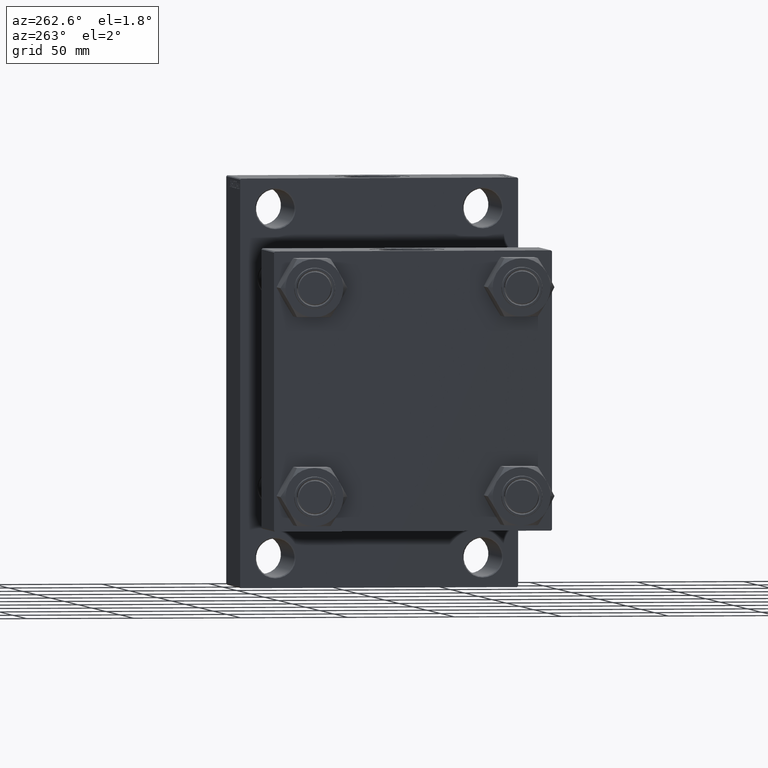
[diagram: clean part render]
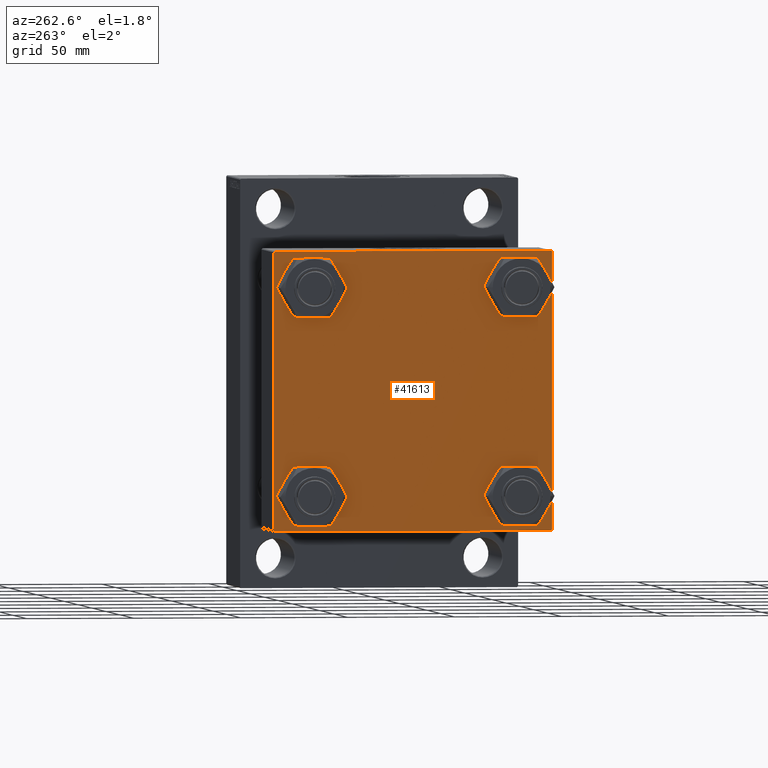
[diagram: same view with one face highlighted and labeled with its STEP entity id]
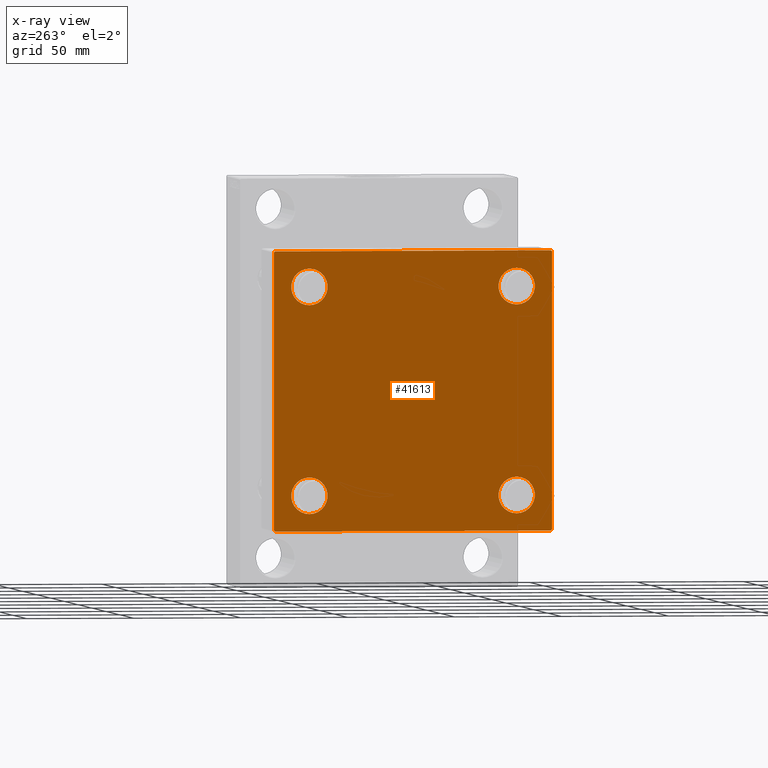
[diagram: x-ray of the same camera — body ghosted, the highlighted face saturated]
A machine part, auxiliary view. The second image highlights one B-rep face of the part: STEP entity #41613.
The next image is the same camera in x-ray: the body ghosted, the highlighted face saturated — about 0% of this face is hidden behind the body in this view.
In plain terms, the highlighted planar face has unit normal (-1, 0, 0).
Its self-contained STEP definition (entity closure, byte-faithful):
#633 = DIRECTION ( 'NONE',  ( -0.000000000000000000, 0.000000000000000000, 1.000000000000000000 ) ) ;
#651 = VERTEX_POINT ( 'NONE', #20208 ) ;
#824 = EDGE_CURVE ( 'NONE', #8812, #14473, #24542, .T. ) ;
#893 = AXIS2_PLACEMENT_3D ( 'NONE', #31475, #24711, #39664 ) ;
#1100 = AXIS2_PLACEMENT_3D ( 'NONE', #36131, #32259, #24809 ) ;
#1127 = DIRECTION ( 'NONE',  ( 1.000000000000000000, -0.000000000000000000, 0.000000000000000000 ) ) ;
#1128 = EDGE_CURVE ( 'NONE', #17832, #42554, #17634, .T. ) ;
#1235 = DIRECTION ( 'NONE',  ( 1.000000000000000000, -0.000000000000000000, 0.000000000000000000 ) ) ;
#1242 = LINE ( 'NONE', #34068, #8619 ) ;
#1533 = CIRCLE ( 'NONE', #37007, 8.500000000000007105 ) ;
#1589 = CIRCLE ( 'NONE', #34737, 8.500000000000007105 ) ;
#1799 = EDGE_LOOP ( 'NONE', ( #16014, #11543, #43783, #16120, #40403, #41701, #24566, #44452 ) ) ;
#1982 = CARTESIAN_POINT ( 'NONE',  ( 0.000000000000000000, -64.49999999999994316, -65.00000000000000000 ) ) ;
#2787 = CARTESIAN_POINT ( 'NONE',  ( 0.000000000000000000, 64.74999999999997158, -64.74999999999997158 ) ) ;
#2841 = VERTEX_POINT ( 'NONE', #8530 ) ;
#2976 = CARTESIAN_POINT ( 'NONE',  ( 0.000000000000000000, -48.44999999999999574, -56.95000000000003837 ) ) ;
#3152 = LINE ( 'NONE', #22222, #46647 ) ;
#3223 = VERTEX_POINT ( 'NONE', #9834 ) ;
#3517 = VERTEX_POINT ( 'NONE', #19929 ) ;
#4068 = CIRCLE ( 'NONE', #11002, 8.500000000000007105 ) ;
#4659 = EDGE_CURVE ( 'NONE', #42554, #17832, #1533, .T. ) ;
#5634 = AXIS2_PLACEMENT_3D ( 'NONE', #44308, #22102, #18949 ) ;
#6456 = EDGE_LOOP ( 'NONE', ( #26474, #38311 ) ) ;
#6845 = DIRECTION ( 'NONE',  ( 0.000000000000000000, 0.000000000000000000, -1.000000000000000000 ) ) ;
#6855 = CARTESIAN_POINT ( 'NONE',  ( 0.000000000000000000, 48.45000000000000995, -48.45000000000001705 ) ) ;
#6909 = EDGE_LOOP ( 'NONE', ( #15921, #40888 ) ) ;
#7725 = CARTESIAN_POINT ( 'NONE',  ( 0.000000000000000000, -64.75000000000176215, -64.74999999999816680 ) ) ;
#8087 = EDGE_CURVE ( 'NONE', #3223, #15314, #1589, .T. ) ;
#8216 = DIRECTION ( 'NONE',  ( 0.000000000000000000, 0.000000000000000000, 1.000000000000000000 ) ) ;
#8448 = LINE ( 'NONE', #16182, #34885 ) ;
#8530 = CARTESIAN_POINT ( 'NONE',  ( 0.000000000000000000, 65.00000000000000000, -64.49999999999995737 ) ) ;
#8559 = CARTESIAN_POINT ( 'NONE',  ( 0.000000000000000000, 64.49999999999997158, -64.99999999999998579 ) ) ;
#8619 = VECTOR ( 'NONE', #26616, 1000.000000000000000 ) ;
#8812 = VERTEX_POINT ( 'NONE', #29383 ) ;
#9073 = CARTESIAN_POINT ( 'NONE',  ( 0.000000000000000000, 0.000000000000000000, 0.000000000000000000 ) ) ;
#9229 = EDGE_LOOP ( 'NONE', ( #47346, #25514 ) ) ;
#9810 = DIRECTION ( 'NONE',  ( 0.000000000000000000, -1.000000000000000000, -1.067522139062650425E-16 ) ) ;
#9834 = CARTESIAN_POINT ( 'NONE',  ( 0.000000000000000000, -48.44999999999999574, 56.95000000000003837 ) ) ;
#10033 = VECTOR ( 'NONE', #13656, 1000.000000000000114 ) ;
#10218 = EDGE_CURVE ( 'NONE', #15314, #3223, #21730, .T. ) ;
#10465 = EDGE_CURVE ( 'NONE', #34556, #31145, #1242, .T. ) ;
#10739 = DIRECTION ( 'NONE',  ( 1.000000000000000000, -0.000000000000000000, 0.000000000000000000 ) ) ;
#10814 = EDGE_CURVE ( 'NONE', #18145, #31145, #33546, .T. ) ;
#11002 = AXIS2_PLACEMENT_3D ( 'NONE', #34305, #1235, #15977 ) ;
#11543 = ORIENTED_EDGE ( 'NONE', *, *, #36943, .T. ) ;
#12354 = EDGE_CURVE ( 'NONE', #34556, #14473, #8448, .T. ) ;
#13656 = DIRECTION ( 'NONE',  ( -0.000000000000000000, -0.7071067811865474617, -0.7071067811865474617 ) ) ;
#14146 = LINE ( 'NONE', #2787, #10033 ) ;
#14386 = EDGE_LOOP ( 'NONE', ( #45991, #40654 ) ) ;
#14473 = VERTEX_POINT ( 'NONE', #31545 ) ;
#14597 = CARTESIAN_POINT ( 'NONE',  ( 0.000000000000000000, 48.45000000000000995, -48.45000000000001705 ) ) ;
#15314 = VERTEX_POINT ( 'NONE', #18260 ) ;
#15387 = VERTEX_POINT ( 'NONE', #43845 ) ;
#15921 = ORIENTED_EDGE ( 'NONE', *, *, #46705, .T. ) ;
#15977 = DIRECTION ( 'NONE',  ( 0.000000000000000000, 0.000000000000000000, 1.000000000000000000 ) ) ;
#16014 = ORIENTED_EDGE ( 'NONE', *, *, #37339, .T. ) ;
#16120 = ORIENTED_EDGE ( 'NONE', *, *, #10814, .T. ) ;
#16182 = CARTESIAN_POINT ( 'NONE',  ( -0.000000000000000000, -64.74999999999819522, 64.75000000000179057 ) ) ;
#16389 = EDGE_CURVE ( 'NONE', #651, #27275, #46613, .T. ) ;
#17485 = EDGE_CURVE ( 'NONE', #8812, #15387, #3152, .T. ) ;
#17634 = CIRCLE ( 'NONE', #36140, 8.500000000000007105 ) ;
#17832 = VERTEX_POINT ( 'NONE', #37368 ) ;
#18145 = VERTEX_POINT ( 'NONE', #1982 ) ;
#18260 = CARTESIAN_POINT ( 'NONE',  ( 0.000000000000000000, -48.44999999999999574, 39.95000000000001705 ) ) ;
#18378 = CIRCLE ( 'NONE', #27652, 8.500000000000007105 ) ;
#18949 = DIRECTION ( 'NONE',  ( 0.000000000000000000, 0.000000000000000000, 1.000000000000000000 ) ) ;
#18988 = PLANE ( 'NONE',  #35593 ) ;
#19117 = CARTESIAN_POINT ( 'NONE',  ( 0.000000000000000000, -65.00000000000000000, 64.50000000000000000 ) ) ;
#19799 = DIRECTION ( 'NONE',  ( -0.000000000000000000, 0.7071067811865672237, 0.7071067811865279218 ) ) ;
#19929 = CARTESIAN_POINT ( 'NONE',  ( 0.000000000000000000, -48.44999999999999574, -39.95000000000001705 ) ) ;
#20208 = CARTESIAN_POINT ( 'NONE',  ( 0.000000000000000000, 48.45000000000000995, 56.95000000000002416 ) ) ;
#20269 = CIRCLE ( 'NONE', #5634, 8.500000000000007105 ) ;
#21678 = CARTESIAN_POINT ( 'NONE',  ( 0.000000000000000000, -48.44999999999999574, 48.45000000000003126 ) ) ;
#21730 = CIRCLE ( 'NONE', #893, 8.500000000000007105 ) ;
#22102 = DIRECTION ( 'NONE',  ( 1.000000000000000000, -0.000000000000000000, 0.000000000000000000 ) ) ;
#22222 = CARTESIAN_POINT ( 'NONE',  ( 0.000000000000000000, 64.74999999999998579, 64.74999999999998579 ) ) ;
#22241 = DIRECTION ( 'NONE',  ( 1.000000000000000000, -0.000000000000000000, 0.000000000000000000 ) ) ;
#24542 = LINE ( 'NONE', #35630, #43058 ) ;
#24566 = ORIENTED_EDGE ( 'NONE', *, *, #824, .F. ) ;
#24711 = DIRECTION ( 'NONE',  ( 1.000000000000000000, -0.000000000000000000, 0.000000000000000000 ) ) ;
#24794 = VECTOR ( 'NONE', #28943, 1000.000000000000000 ) ;
#24809 = DIRECTION ( 'NONE',  ( 0.000000000000000000, 0.000000000000000000, 1.000000000000000000 ) ) ;
#25514 = ORIENTED_EDGE ( 'NONE', *, *, #4659, .T. ) ;
#26321 = DIRECTION ( 'NONE',  ( 0.000000000000000000, -0.7071067811865279218, 0.7071067811865671127 ) ) ;
#26474 = ORIENTED_EDGE ( 'NONE', *, *, #16389, .T. ) ;
#26616 = DIRECTION ( 'NONE',  ( 0.000000000000000000, 0.000000000000000000, -1.000000000000000000 ) ) ;
#26998 = VECTOR ( 'NONE', #6845, 1000.000000000000000 ) ;
#27275 = VERTEX_POINT ( 'NONE', #45108 ) ;
#27439 = FACE_BOUND ( 'NONE', #14386, .T. ) ;
#27652 = AXIS2_PLACEMENT_3D ( 'NONE', #34198, #1127, #34433 ) ;
#27848 = CARTESIAN_POINT ( 'NONE',  ( 0.000000000000000000, 48.45000000000000995, -56.95000000000002416 ) ) ;
#28569 = EDGE_CURVE ( 'NONE', #28637, #3517, #18378, .T. ) ;
#28637 = VERTEX_POINT ( 'NONE', #2976 ) ;
#28943 = DIRECTION ( 'NONE',  ( 0.000000000000000000, -1.000000000000000000, -1.067522139062650425E-16 ) ) ;
#29228 = DIRECTION ( 'NONE',  ( 0.000000000000000000, 0.7071067811865474617, -0.7071067811865474617 ) ) ;
#29383 = CARTESIAN_POINT ( 'NONE',  ( 0.000000000000000000, 64.49999999999997158, 65.00000000000001421 ) ) ;
#30322 = FACE_BOUND ( 'NONE', #6909, .T. ) ;
#31145 = VERTEX_POINT ( 'NONE', #38219 ) ;
#31475 = CARTESIAN_POINT ( 'NONE',  ( 0.000000000000000000, -48.44999999999999574, 48.45000000000003126 ) ) ;
#31545 = CARTESIAN_POINT ( 'NONE',  ( 0.000000000000000000, -64.49999999999997158, 65.00000000000000000 ) ) ;
#32259 = DIRECTION ( 'NONE',  ( 1.000000000000000000, -0.000000000000000000, 0.000000000000000000 ) ) ;
#33546 = LINE ( 'NONE', #7725, #39464 ) ;
#34068 = CARTESIAN_POINT ( 'NONE',  ( 0.000000000000000000, -65.00000000000000000, 65.00000000000000000 ) ) ;
#34198 = CARTESIAN_POINT ( 'NONE',  ( 0.000000000000000000, -48.44999999999999574, -48.45000000000003126 ) ) ;
#34305 = CARTESIAN_POINT ( 'NONE',  ( 0.000000000000000000, 48.45000000000000995, 48.45000000000001705 ) ) ;
#34433 = DIRECTION ( 'NONE',  ( 0.000000000000000000, 0.000000000000000000, 1.000000000000000000 ) ) ;
#34556 = VERTEX_POINT ( 'NONE', #19117 ) ;
#34737 = AXIS2_PLACEMENT_3D ( 'NONE', #21678, #43169, #40016 ) ;
#34885 = VECTOR ( 'NONE', #19799, 1000.000000000000000 ) ;
#35593 = AXIS2_PLACEMENT_3D ( 'NONE', #9073, #37340, #633 ) ;
#35630 = CARTESIAN_POINT ( 'NONE',  ( 0.000000000000000000, 65.00000000000000000, 65.00000000000001421 ) ) ;
#36131 = CARTESIAN_POINT ( 'NONE',  ( 0.000000000000000000, 48.45000000000000995, 48.45000000000001705 ) ) ;
#36140 = AXIS2_PLACEMENT_3D ( 'NONE', #6855, #22241, #8216 ) ;
#36530 = LINE ( 'NONE', #39911, #26998 ) ;
#36943 = EDGE_CURVE ( 'NONE', #2841, #37927, #14146, .T. ) ;
#37007 = AXIS2_PLACEMENT_3D ( 'NONE', #14597, #10739, #40434 ) ;
#37339 = EDGE_CURVE ( 'NONE', #15387, #2841, #36530, .T. ) ;
#37340 = DIRECTION ( 'NONE',  ( -1.000000000000000000, 0.000000000000000000, -0.000000000000000000 ) ) ;
#37368 = CARTESIAN_POINT ( 'NONE',  ( 0.000000000000000000, 48.45000000000000995, -39.95000000000000284 ) ) ;
#37569 = FACE_BOUND ( 'NONE', #9229, .T. ) ;
#37927 = VERTEX_POINT ( 'NONE', #8559 ) ;
#38219 = CARTESIAN_POINT ( 'NONE',  ( 0.000000000000000000, -65.00000000000000000, -64.49999999999991473 ) ) ;
#38311 = ORIENTED_EDGE ( 'NONE', *, *, #46202, .T. ) ;
#39464 = VECTOR ( 'NONE', #26321, 1000.000000000000000 ) ;
#39664 = DIRECTION ( 'NONE',  ( 0.000000000000000000, 0.000000000000000000, 1.000000000000000000 ) ) ;
#39703 = EDGE_CURVE ( 'NONE', #37927, #18145, #43429, .T. ) ;
#39911 = CARTESIAN_POINT ( 'NONE',  ( 0.000000000000000000, 65.00000000000000000, 65.00000000000001421 ) ) ;
#40016 = DIRECTION ( 'NONE',  ( 0.000000000000000000, 0.000000000000000000, 1.000000000000000000 ) ) ;
#40403 = ORIENTED_EDGE ( 'NONE', *, *, #10465, .F. ) ;
#40434 = DIRECTION ( 'NONE',  ( 0.000000000000000000, 0.000000000000000000, 1.000000000000000000 ) ) ;
#40654 = ORIENTED_EDGE ( 'NONE', *, *, #10218, .T. ) ;
#40888 = ORIENTED_EDGE ( 'NONE', *, *, #28569, .T. ) ;
#41613 = ADVANCED_FACE ( 'NONE', ( #27439, #30322, #37569, #44813, #42153 ), #18988, .T. ) ;
#41701 = ORIENTED_EDGE ( 'NONE', *, *, #12354, .T. ) ;
#42153 = FACE_OUTER_BOUND ( 'NONE', #1799, .T. ) ;
#42554 = VERTEX_POINT ( 'NONE', #27848 ) ;
#43058 = VECTOR ( 'NONE', #9810, 1000.000000000000000 ) ;
#43169 = DIRECTION ( 'NONE',  ( 1.000000000000000000, -0.000000000000000000, 0.000000000000000000 ) ) ;
#43429 = LINE ( 'NONE', #47043, #24794 ) ;
#43783 = ORIENTED_EDGE ( 'NONE', *, *, #39703, .T. ) ;
#43845 = CARTESIAN_POINT ( 'NONE',  ( 0.000000000000000000, 65.00000000000000000, 64.49999999999998579 ) ) ;
#44308 = CARTESIAN_POINT ( 'NONE',  ( 0.000000000000000000, -48.44999999999999574, -48.45000000000003126 ) ) ;
#44452 = ORIENTED_EDGE ( 'NONE', *, *, #17485, .T. ) ;
#44813 = FACE_BOUND ( 'NONE', #6456, .T. ) ;
#45108 = CARTESIAN_POINT ( 'NONE',  ( 0.000000000000000000, 48.45000000000000995, 39.95000000000000284 ) ) ;
#45991 = ORIENTED_EDGE ( 'NONE', *, *, #8087, .T. ) ;
#46202 = EDGE_CURVE ( 'NONE', #27275, #651, #4068, .T. ) ;
#46613 = CIRCLE ( 'NONE', #1100, 8.500000000000007105 ) ;
#46647 = VECTOR ( 'NONE', #29228, 1000.000000000000114 ) ;
#46705 = EDGE_CURVE ( 'NONE', #3517, #28637, #20269, .T. ) ;
#47043 = CARTESIAN_POINT ( 'NONE',  ( 0.000000000000000000, 65.00000000000000000, -64.99999999999998579 ) ) ;
#47346 = ORIENTED_EDGE ( 'NONE', *, *, #1128, .T. ) ;